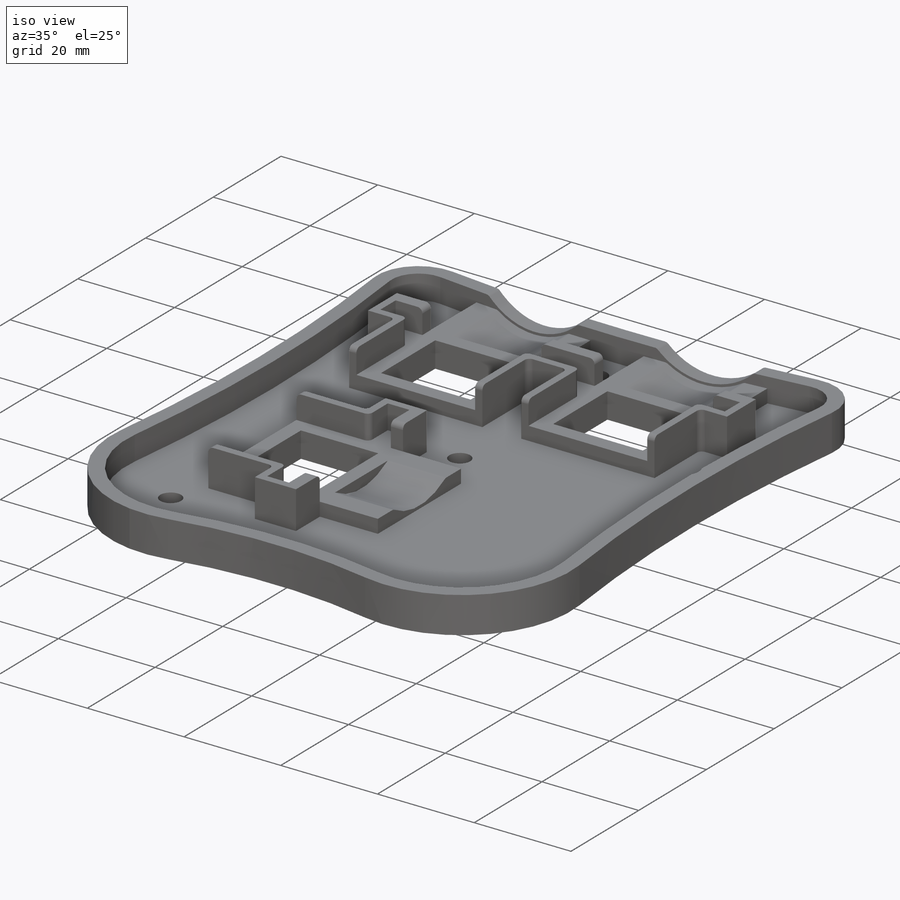
[diagram: iso view]
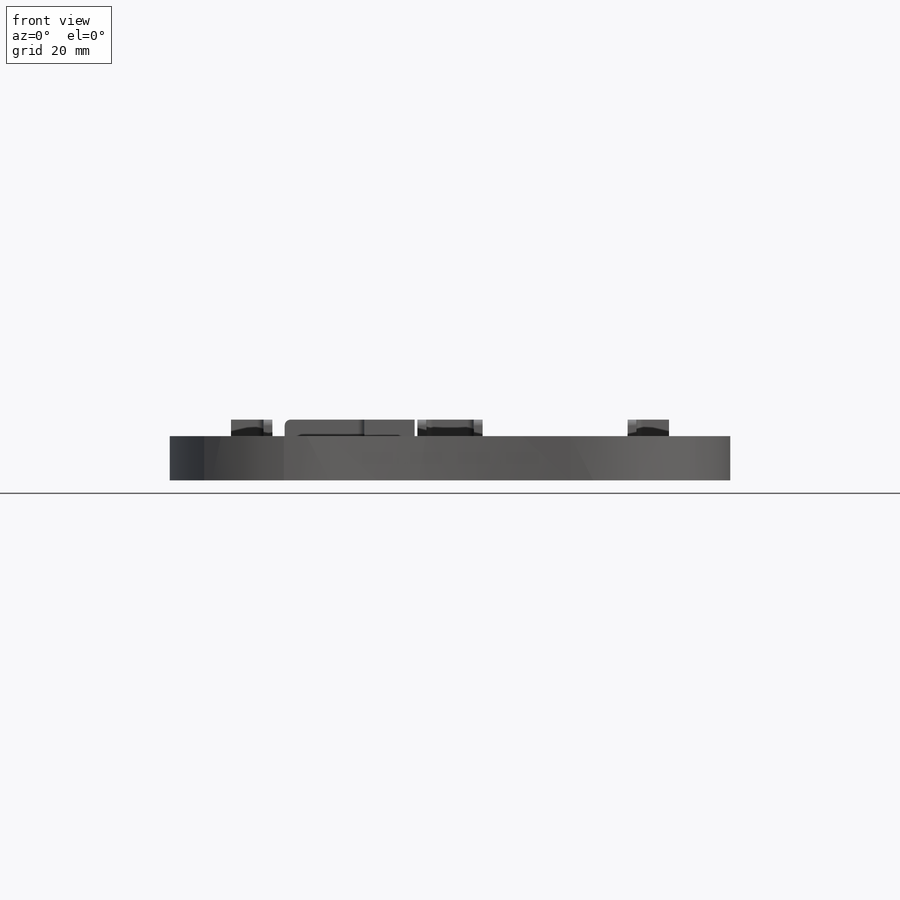
[diagram: front view]
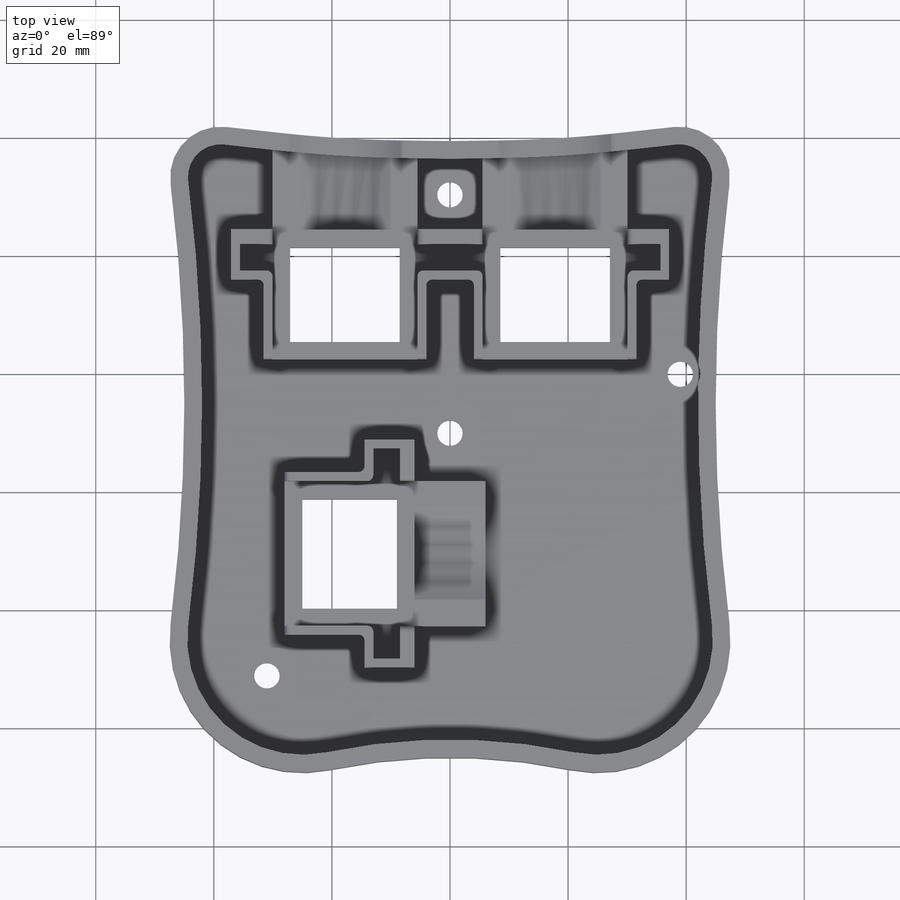
[diagram: top view]
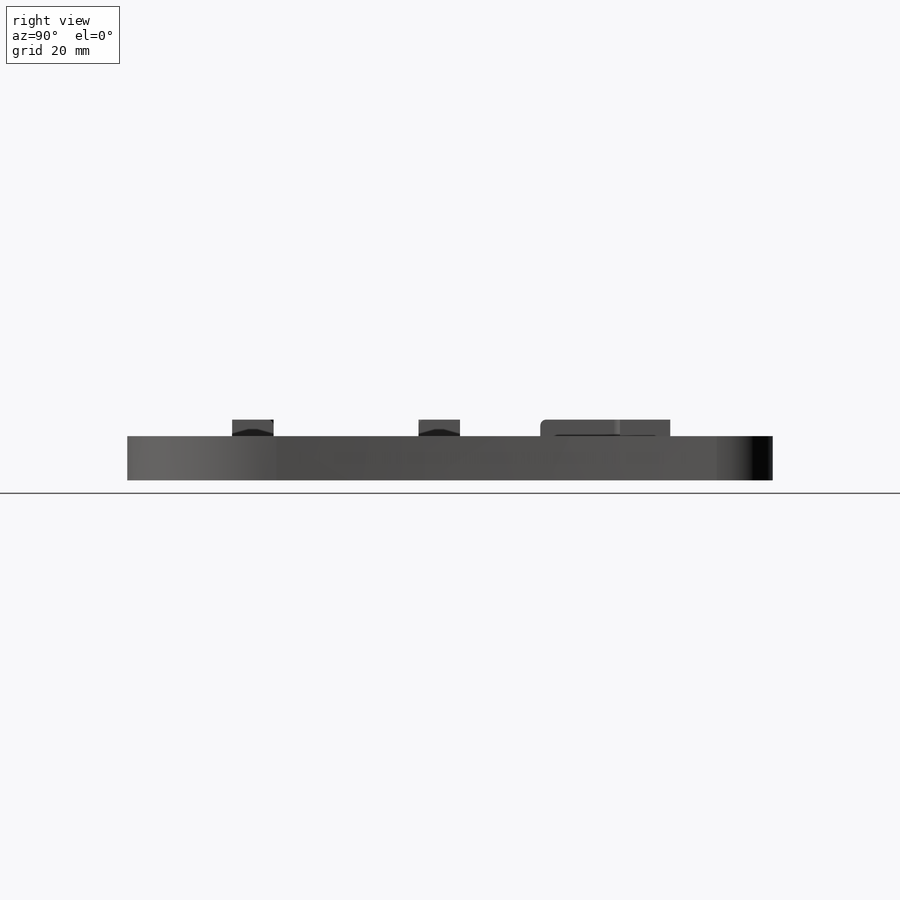
[diagram: right view]
SOLIDWORKS PART (.sldprt)
format: sldprt  version: not decoded by parser v0  size: 1,064,960 bytes
history: native  units: mm
features: sketch x13, extrude x8, cut_extrude x5, fillet x2, material x1 + 1 further entry (+17 scaffold rows collapsed; 3 parser-record rows omitted)
feature tree (50):
  scaffold x17  (default folders/planes/origin — collapsed)
  material  "ABS"
  "a2_o"
  parser-record x3  (decoder bookkeeping rows leaked as tree rows — omitted from the tree; the rows remain in map.json)
  sketch  "Sketch1"  dims[D1=0.0mm]
  cut_extrude  "a2 Clean Cut"  [1 undecoded]
  sketch  "Sketch2"  dims[D1=0.0mm D2=0.0mm D3=0.0mm]
  extrude  "a2 Patching"  [1 undecoded]
  sketch  "Sketch3"  dims[D1=15.0mm D2=5.525mm D3=24.55mm D4=2.5mm]
  extrude  "Dynamixel Platforms"  Depth=2.8mm
  sketch  "Sketch4"  dims[D2=12.0mm D3=12.0mm D1=3.0mm]
  cut_extrude  "Speed Holes"  [1 undecoded]
  sketch  "Sketch5"  dims[D1=1.5mm D2=1.5mm D3=1.5mm D4=1.5mm D5=1.5mm]
  extrude  "Dynamixel Mounting Walls"  Depth=5mm
  sketch  "Sketch6"  dims[c1.D2=8.5mm c1.D1=3.0mm c2.D2=~68.919744mm c2.D1=~4.319215mm]
  cut_extrude  "Clearance - Front Profile"  [1 undecoded]
  sketch  "Sketch7"  dims[D1=0.0mm D2=3.0mm]
  extrude  "Outer Brim"  Depth=5mm
  sketch  "Sketch8"  dims[D2=27.5mm D1=12.0mm]
  cut_extrude  "Clearance - Front Pulleys"  [1 undecoded]
  sketch  "Sketch9"  dims[D1=6.8mm]
  cut_extrude  "Clearance - Side Post"  [1 undecoded]
  fillet  "Contouring"  Radius=1mm
  sketch  "Sketch10"  dims[D1=0.0mm D2=0.0mm D3=0.0mm]
  extrude  "Dynamixel Mount Frame Extension 1"  [1 undecoded]
  sketch  "Sketch11"  dims[D1=0.0mm D2=0.0mm]
  extrude  "Dynamixel Mount Frame Extension 2"  [1 undecoded]
  sketch  "Sketch12"  dims[D1=0.5mm]
  extrude  "Tendon Trap"  [1 undecoded]
  sketch  "Sketch14"  dims[D2=14.25mm D1=14.8mm]
  extrude  "Tendon Trap 2"  Depth=12mm
  fillet  "Tendon Trap Contouring"  Radius=1mm
decode coverage: 19 of 28 modeling features carry decoded parameters; 1 rows unclassified (native names shown)
note: ~ marks probable driven/reference dimensions
note: 9 parameter values undecoded
summary: no parameter record found for 9 features
note: suppression state not decoded; provenance and decode notes live in map.json
